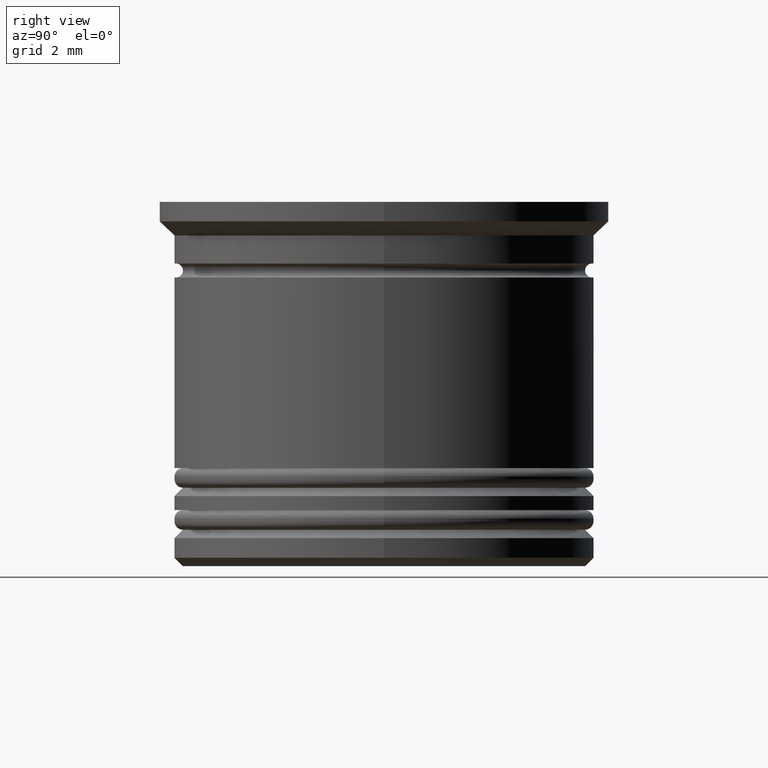
[diagram: clean part render]
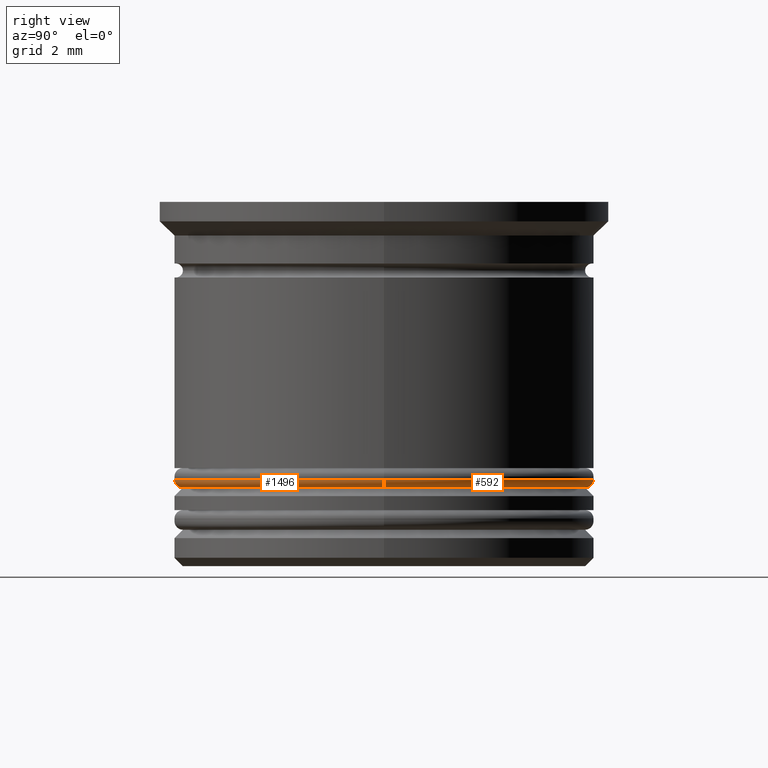
[diagram: same view with one multi-face feature highlighted, each face labeled with its STEP entity id]
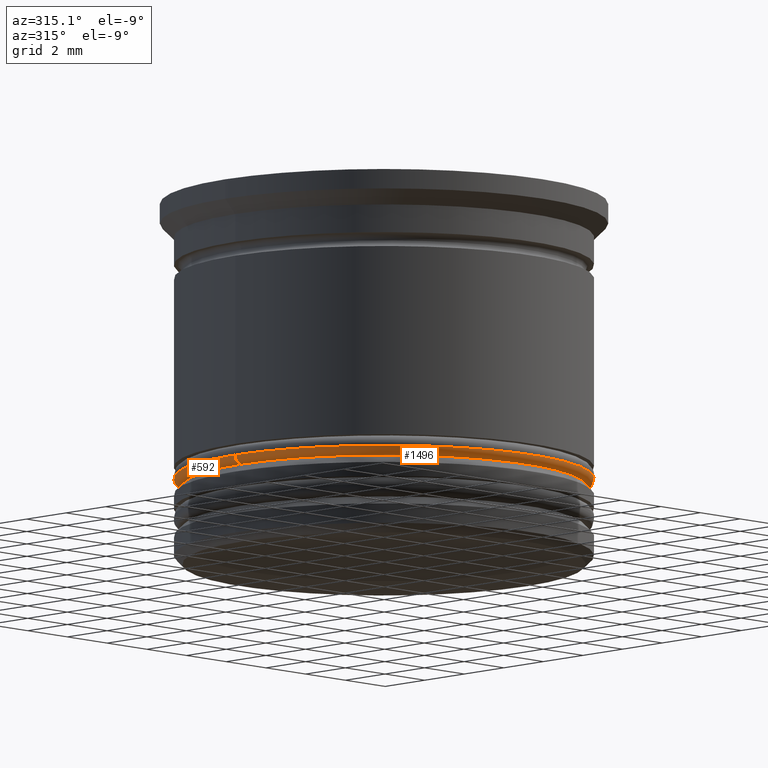
[diagram: same view with one multi-face feature highlighted, each face labeled with its STEP entity id]
A machine part, right view. The highlighted faces form ONE feature: a constant-radius fillet chain: 2 tangent blend faces with common blend radius 0.3 mm. The faces share edges in the B-rep.
A second angle (auxiliary view) of the same feature is appended — it is thin or edge-on in the first view.
Their STEP definitions:
[1] entity #592 (Torus):
#62 = DIRECTION ( 'NONE',  ( 1.000000000000000000, 0.000000000000000000, 0.000000000000000000 ) ) ;
#75 = DIRECTION ( 'NONE',  ( 0.000000000000000000, -1.000000000000000000, 0.000000000000000000 ) ) ;
#290 = ORIENTED_EDGE ( 'NONE', *, *, #1430, .F. ) ;
#386 = CARTESIAN_POINT ( 'NONE',  ( -7.200000000000001954, 8.817456953860946247E-16, -9.900000000000005684 ) ) ;
#398 = DIRECTION ( 'NONE',  ( 0.000000000000000000, 0.000000000000000000, 1.000000000000000000 ) ) ;
#520 = DIRECTION ( 'NONE',  ( 1.000000000000000000, 0.000000000000000000, 0.000000000000000000 ) ) ;
#559 = EDGE_CURVE ( 'NONE', #1587, #1720, #999, .T. ) ;
#592 = ADVANCED_FACE ( 'NONE', ( #1017 ), #1394, .T. ) ;
#605 = CIRCLE ( 'NONE', #1768, 0.2999999999999999334 ) ;
#651 = AXIS2_PLACEMENT_3D ( 'NONE', #1724, #1163, #520 ) ;
#684 = VERTEX_POINT ( 'NONE', #1184 ) ;
#864 = VERTEX_POINT ( 'NONE', #1887 ) ;
#999 = CIRCLE ( 'NONE', #1464, 7.500000000000001776 ) ;
#1008 = EDGE_CURVE ( 'NONE', #684, #1720, #605, .T. ) ;
#1017 = FACE_OUTER_BOUND ( 'NONE', #1439, .T. ) ;
#1122 = AXIS2_PLACEMENT_3D ( 'NONE', #1904, #1914, #1475 ) ;
#1163 = DIRECTION ( 'NONE',  ( -0.000000000000000000, -0.000000000000000000, -1.000000000000000000 ) ) ;
#1184 = CARTESIAN_POINT ( 'NONE',  ( -7.200000000000001954, 9.001153973733047589E-16, -10.20000000000000639 ) ) ;
#1216 = ORIENTED_EDGE ( 'NONE', *, *, #1390, .F. ) ;
#1251 = AXIS2_PLACEMENT_3D ( 'NONE', #1452, #75, #1577 ) ;
#1390 = EDGE_CURVE ( 'NONE', #864, #1587, #1411, .T. ) ;
#1394 = TOROIDAL_SURFACE ( 'NONE', #1122, 7.200000000000001954, 0.2999999999999999889 ) ;
#1411 = CIRCLE ( 'NONE', #1251, 0.2999999999999999334 ) ;
#1428 = CARTESIAN_POINT ( 'NONE',  ( -7.500000000000001776, 9.184850993605149917E-16, -9.900000000000005684 ) ) ;
#1430 = EDGE_CURVE ( 'NONE', #684, #864, #1604, .T. ) ;
#1438 = CARTESIAN_POINT ( 'NONE',  ( 0.000000000000000000, 0.000000000000000000, -9.900000000000005684 ) ) ;
#1439 = EDGE_LOOP ( 'NONE', ( #290, #1563, #1697, #1216 ) ) ;
#1452 = CARTESIAN_POINT ( 'NONE',  ( 7.200000000000001954, 0.000000000000000000, -9.900000000000005684 ) ) ;
#1464 = AXIS2_PLACEMENT_3D ( 'NONE', #1438, #398, #62 ) ;
#1475 = DIRECTION ( 'NONE',  ( 1.000000000000000000, 0.000000000000000000, 0.000000000000000000 ) ) ;
#1563 = ORIENTED_EDGE ( 'NONE', *, *, #1008, .T. ) ;
#1577 = DIRECTION ( 'NONE',  ( 0.000000000000000000, 0.000000000000000000, -1.000000000000000000 ) ) ;
#1587 = VERTEX_POINT ( 'NONE', #1844 ) ;
#1597 = DIRECTION ( 'NONE',  ( 1.224646799147353207E-16, 1.000000000000000000, -0.000000000000000000 ) ) ;
#1604 = CIRCLE ( 'NONE', #651, 7.200000000000001954 ) ;
#1641 = DIRECTION ( 'NONE',  ( -1.000000000000000000, 1.224646799147353207E-16, 0.000000000000000000 ) ) ;
#1697 = ORIENTED_EDGE ( 'NONE', *, *, #559, .F. ) ;
#1720 = VERTEX_POINT ( 'NONE', #1428 ) ;
#1724 = CARTESIAN_POINT ( 'NONE',  ( 0.000000000000000000, 0.000000000000000000, -10.20000000000000639 ) ) ;
#1768 = AXIS2_PLACEMENT_3D ( 'NONE', #386, #1597, #1641 ) ;
#1844 = CARTESIAN_POINT ( 'NONE',  ( 7.500000000000001776, 0.000000000000000000, -9.900000000000005684 ) ) ;
#1887 = CARTESIAN_POINT ( 'NONE',  ( 7.200000000000001954, 0.000000000000000000, -10.20000000000000639 ) ) ;
#1904 = CARTESIAN_POINT ( 'NONE',  ( 0.000000000000000000, 0.000000000000000000, -9.900000000000005684 ) ) ;
#1914 = DIRECTION ( 'NONE',  ( 0.000000000000000000, 0.000000000000000000, 1.000000000000000000 ) ) ;
[2] entity #1496 (Torus):
#24 = ORIENTED_EDGE ( 'NONE', *, *, #1390, .T. ) ;
#29 = CARTESIAN_POINT ( 'NONE',  ( 0.000000000000000000, 0.000000000000000000, -9.900000000000005684 ) ) ;
#37 = TOROIDAL_SURFACE ( 'NONE', #1226, 7.200000000000001954, 0.2999999999999999889 ) ;
#75 = DIRECTION ( 'NONE',  ( 0.000000000000000000, -1.000000000000000000, 0.000000000000000000 ) ) ;
#115 = DIRECTION ( 'NONE',  ( 1.000000000000000000, 0.000000000000000000, 0.000000000000000000 ) ) ;
#246 = EDGE_CURVE ( 'NONE', #864, #684, #1759, .T. ) ;
#386 = CARTESIAN_POINT ( 'NONE',  ( -7.200000000000001954, 8.817456953860946247E-16, -9.900000000000005684 ) ) ;
#605 = CIRCLE ( 'NONE', #1768, 0.2999999999999999334 ) ;
#640 = DIRECTION ( 'NONE',  ( 1.000000000000000000, 0.000000000000000000, 0.000000000000000000 ) ) ;
#684 = VERTEX_POINT ( 'NONE', #1184 ) ;
#714 = FACE_OUTER_BOUND ( 'NONE', #938, .T. ) ;
#788 = CARTESIAN_POINT ( 'NONE',  ( 0.000000000000000000, 0.000000000000000000, -10.20000000000000639 ) ) ;
#864 = VERTEX_POINT ( 'NONE', #1887 ) ;
#938 = EDGE_LOOP ( 'NONE', ( #1542, #1774, #24, #1287 ) ) ;
#1008 = EDGE_CURVE ( 'NONE', #684, #1720, #605, .T. ) ;
#1054 = AXIS2_PLACEMENT_3D ( 'NONE', #788, #1405, #640 ) ;
#1068 = CIRCLE ( 'NONE', #1865, 7.500000000000001776 ) ;
#1184 = CARTESIAN_POINT ( 'NONE',  ( -7.200000000000001954, 9.001153973733047589E-16, -10.20000000000000639 ) ) ;
#1226 = AXIS2_PLACEMENT_3D ( 'NONE', #1648, #1781, #115 ) ;
#1250 = DIRECTION ( 'NONE',  ( 1.000000000000000000, 0.000000000000000000, 0.000000000000000000 ) ) ;
#1251 = AXIS2_PLACEMENT_3D ( 'NONE', #1452, #75, #1577 ) ;
#1256 = EDGE_CURVE ( 'NONE', #1720, #1587, #1068, .T. ) ;
#1287 = ORIENTED_EDGE ( 'NONE', *, *, #1256, .F. ) ;
#1390 = EDGE_CURVE ( 'NONE', #864, #1587, #1411, .T. ) ;
#1405 = DIRECTION ( 'NONE',  ( -0.000000000000000000, -0.000000000000000000, -1.000000000000000000 ) ) ;
#1411 = CIRCLE ( 'NONE', #1251, 0.2999999999999999334 ) ;
#1428 = CARTESIAN_POINT ( 'NONE',  ( -7.500000000000001776, 9.184850993605149917E-16, -9.900000000000005684 ) ) ;
#1452 = CARTESIAN_POINT ( 'NONE',  ( 7.200000000000001954, 0.000000000000000000, -9.900000000000005684 ) ) ;
#1496 = ADVANCED_FACE ( 'NONE', ( #714 ), #37, .T. ) ;
#1542 = ORIENTED_EDGE ( 'NONE', *, *, #1008, .F. ) ;
#1577 = DIRECTION ( 'NONE',  ( 0.000000000000000000, 0.000000000000000000, -1.000000000000000000 ) ) ;
#1587 = VERTEX_POINT ( 'NONE', #1844 ) ;
#1597 = DIRECTION ( 'NONE',  ( 1.224646799147353207E-16, 1.000000000000000000, -0.000000000000000000 ) ) ;
#1641 = DIRECTION ( 'NONE',  ( -1.000000000000000000, 1.224646799147353207E-16, 0.000000000000000000 ) ) ;
#1648 = CARTESIAN_POINT ( 'NONE',  ( 0.000000000000000000, 0.000000000000000000, -9.900000000000005684 ) ) ;
#1720 = VERTEX_POINT ( 'NONE', #1428 ) ;
#1728 = DIRECTION ( 'NONE',  ( 0.000000000000000000, 0.000000000000000000, 1.000000000000000000 ) ) ;
#1759 = CIRCLE ( 'NONE', #1054, 7.200000000000001954 ) ;
#1768 = AXIS2_PLACEMENT_3D ( 'NONE', #386, #1597, #1641 ) ;
#1774 = ORIENTED_EDGE ( 'NONE', *, *, #246, .F. ) ;
#1781 = DIRECTION ( 'NONE',  ( 0.000000000000000000, 0.000000000000000000, 1.000000000000000000 ) ) ;
#1844 = CARTESIAN_POINT ( 'NONE',  ( 7.500000000000001776, 0.000000000000000000, -9.900000000000005684 ) ) ;
#1865 = AXIS2_PLACEMENT_3D ( 'NONE', #29, #1728, #1250 ) ;
#1887 = CARTESIAN_POINT ( 'NONE',  ( 7.200000000000001954, 0.000000000000000000, -10.20000000000000639 ) ) ;